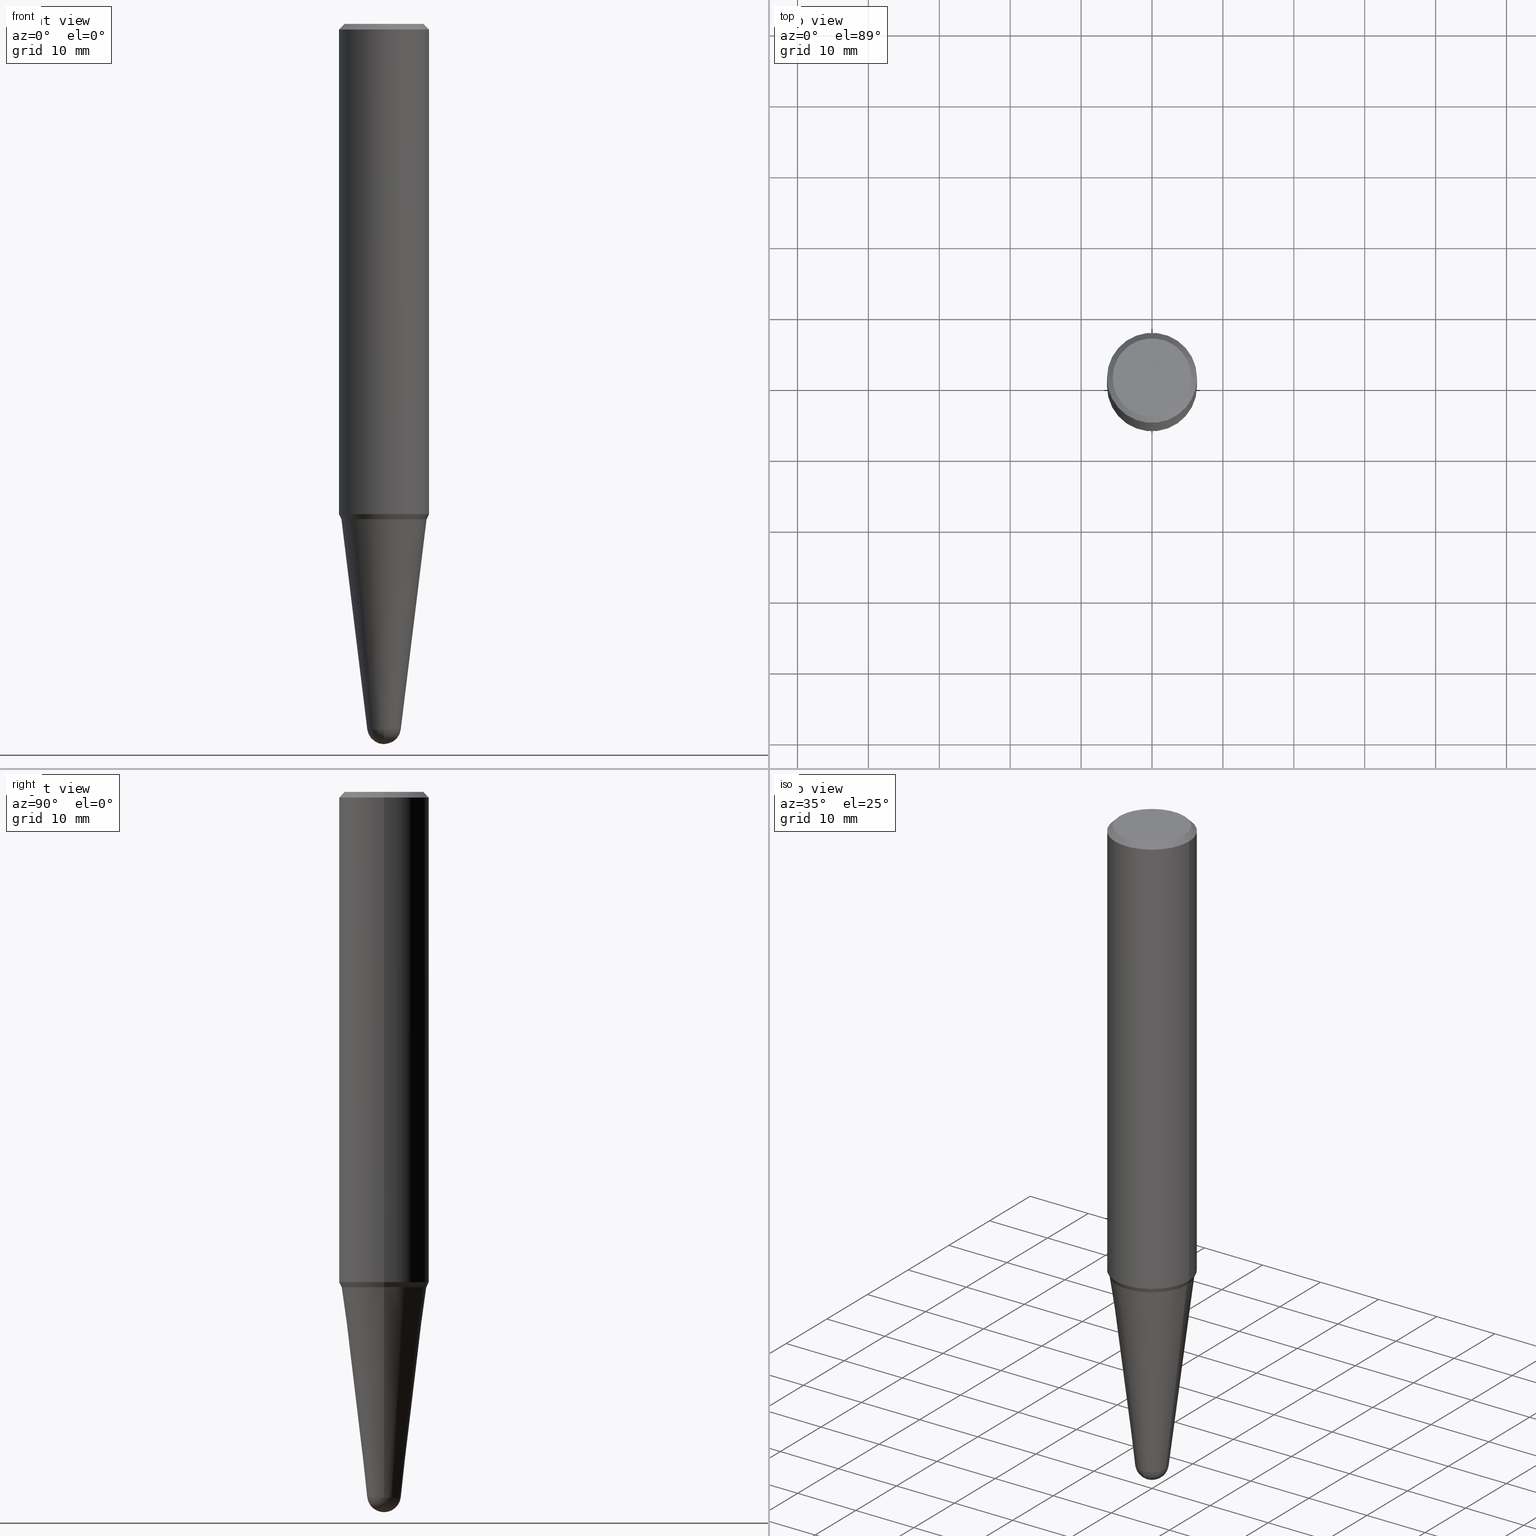
[diagram: canonical four-view strip — front | top / right | iso, engineering-drawing reading convention]
A machine part, canonical four-view strip (front | top / right | iso — engineering-drawing reading convention). The complete STEP part file that produces these views, byte-faithful:
ISO-10303-21;
HEADER;
FILE_DESCRIPTION (( 'STEP AP203' ),
    '1' );
FILE_NAME ('32441.STEP',
    '2024-03-04T15:24:07',
    ( '' ),
    ( '' ),
    'SwSTEP 2.0',
    'SolidWorks 2023',
    '' );
FILE_SCHEMA (( 'CONFIG_CONTROL_DESIGN' ));
ENDSEC;

DATA;
#1 = DIRECTION ( 'NONE',  ( 1.000000000000000000, -6.982962677686275388E-15, 0.000000000000000000 ) ) ;
#2 = CIRCLE ( 'NONE', #331, 0.2500000000000003331 ) ;
#3 = DIRECTION ( 'NONE',  ( 2.438088387897960049E-29, -3.491481338843145188E-15, -1.000000000000000000 ) ) ;
#4 = VECTOR ( 'NONE', #48, 39.37007874015748854 ) ;
#5 = ORIENTED_EDGE ( 'NONE', *, *, #449, .F. ) ;
#6 = DIRECTION ( 'NONE',  ( -2.445468806185136597E-29, 3.491481338843145583E-15, 1.000000000000000000 ) ) ;
#7 = PERSON_AND_ORGANIZATION ( #398, #198 ) ;
#8 = DIRECTION ( 'NONE',  ( -2.445468806185136597E-29, 3.491481338843145583E-15, 1.000000000000000000 ) ) ;
#9 = VECTOR ( 'NONE', #112, 39.37007874015748143 ) ;
#10 = CC_DESIGN_APPROVAL ( #326, ( #251 ) ) ;
#11 = CARTESIAN_POINT ( 'NONE',  ( 0.2364679309439789157, -1.125282041807015082E-14, -2.750000000000000000 ) ) ;
#12 = APPROVAL_DATE_TIME ( #42, #314 ) ;
#13 = DIRECTION ( 'NONE',  ( 0.4226182617406930020, 2.132291770427957594E-16, 0.9063077870366528233 ) ) ;
#14 = DIRECTION ( 'NONE',  ( 1.000000000000000000, -6.982962677686266711E-15, 4.880466792705914597E-29 ) ) ;
#15 = EDGE_CURVE ( 'NONE', #290, #20, #51, .T. ) ;
#16 = CC_DESIGN_APPROVAL ( #286, ( #130 ) ) ;
#17 = CARTESIAN_POINT ( 'NONE',  ( 6.501196143360338918E-16, 0.09310082902394276050, -3.917631344411403482 ) ) ;
#18 = ORIENTED_EDGE ( 'NONE', *, *, #375, .F. ) ;
#19 = CARTESIAN_POINT ( 'NONE',  ( 6.723816482606031719E-29, -9.599827941149227567E-15, -2.749499999999999833 ) ) ;
#20 = VERTEX_POINT ( 'NONE', #423 ) ;
#21 = PLANE ( 'NONE',  #173 ) ;
#22 = ADVANCED_FACE ( 'NONE', ( #315 ), #380, .T. ) ;
#23 = AXIS2_PLACEMENT_3D ( 'NONE', #328, #224, #193 ) ;
#24 = CARTESIAN_POINT ( 'NONE',  ( -0.2500000000000001665, 1.776356839400254015E-15, 5.931196827434174486E-16 ) ) ;
#25 = EDGE_LOOP ( 'NONE', ( #61, #275, #217, #210 ) ) ;
#26 = APPLICATION_CONTEXT ( 'configuration controlled 3d designs of mechanical parts and assemblies' ) ;
#27 = DIRECTION ( 'NONE',  ( 1.000000000000000000, -6.982962677686265922E-15, 4.883557194083112340E-29 ) ) ;
#28 = ORIENTED_EDGE ( 'NONE', *, *, #352, .F. ) ;
#29 = ORIENTED_EDGE ( 'NONE', *, *, #335, .T. ) ;
#30 = CC_DESIGN_DATE_AND_TIME_ASSIGNMENT ( #107, #74, ( #251 ) ) ;
#31 = AXIS2_PLACEMENT_3D ( 'NONE', #159, #364, #433 ) ;
#32 = CONICAL_SURFACE ( 'NONE', #427, 0.2369679309439788883, 0.7853981633983361244 ) ;
#33 = AXIS2_PLACEMENT_3D ( 'NONE', #319, #354, #102 ) ;
#34 = DIRECTION ( 'NONE',  ( 1.000000000000000000, -6.982962677686266711E-15, 0.000000000000000000 ) ) ;
#35 =( NAMED_UNIT ( * ) PLANE_ANGLE_UNIT ( ) SI_UNIT ( $, .RADIAN. ) );
#36 = ORIENTED_EDGE ( 'NONE', *, *, #180, .F. ) ;
#37 = COORDINATED_UNIVERSAL_TIME_OFFSET ( 5, 0, .BEHIND. ) ;
#38 = CC_DESIGN_PERSON_AND_ORGANIZATION_ASSIGNMENT ( #353, #66, ( #125 ) ) ;
#39 = COORDINATED_UNIVERSAL_TIME_OFFSET ( 5, 0, .BEHIND. ) ;
#40 = CARTESIAN_POINT ( 'NONE',  ( 7.642090019328565002E-31, -1.091087918388484967E-16, -0.03125000000000005551 ) ) ;
#41 = AXIS2_PLACEMENT_3D ( 'NONE', #202, #241, #207 ) ;
#42 = DATE_AND_TIME ( #187, #63 ) ;
#43 = CARTESIAN_POINT ( 'NONE',  ( 9.580445246891225390E-29, -1.367833673147939771E-14, -3.917631344411403038 ) ) ;
#44 = DATE_AND_TIME ( #432, #334 ) ;
#45 = CARTESIAN_POINT ( 'NONE',  ( 6.723816482606031719E-29, -9.599827941149227567E-15, -2.749499999999999833 ) ) ;
#46 = FACE_OUTER_BOUND ( 'NONE', #240, .T. ) ;
#47 = CIRCLE ( 'NONE', #33, 0.2369679309439788883 ) ;
#48 = DIRECTION ( 'NONE',  ( -0.7071067811865493491, 2.468850131082277177E-15, -0.7071067811865454633 ) ) ;
#49 = CARTESIAN_POINT ( 'NONE',  ( 6.725039217009124520E-29, -9.601573681818649859E-15, -2.750000000000000000 ) ) ;
#50 = CARTESIAN_POINT ( 'NONE',  ( -0.09310082902395643012, -1.046909176500562336E-14, -3.917631344411403038 ) ) ;
#51 = CIRCLE ( 'NONE', #101, 0.2187500000000003331 ) ;
#52 = EDGE_LOOP ( 'NONE', ( #237, #371, #80, #36 ) ) ;
#53 = CIRCLE ( 'NONE', #146, 0.09310082902395643012 ) ;
#54 = PRODUCT_DEFINITION_SHAPE ( 'NONE', 'NONE',  #251 ) ;
#55 = EDGE_LOOP ( 'NONE', ( #312, #306 ) ) ;
#56 = LINE ( 'NONE', #200, #440 ) ;
#57 = ORIENTED_EDGE ( 'NONE', *, *, #352, .T. ) ;
#58 = CARTESIAN_POINT ( 'NONE',  ( 0.2500000000000003331, -1.125173466965008602E-14, -2.722624891181058437 ) ) ;
#59 = ORIENTED_EDGE ( 'NONE', *, *, #459, .F. ) ;
#60 = DIRECTION ( 'NONE',  ( -2.445468806185136597E-29, 3.491481338843145583E-15, 1.000000000000000000 ) ) ;
#61 = ORIENTED_EDGE ( 'NONE', *, *, #416, .T. ) ;
#62 = AXIS2_PLACEMENT_3D ( 'NONE', #395, #376, #264 ) ;
#63 = LOCAL_TIME ( 10, 24, 7.000000000000000000, #221 ) ;
#64 = CARTESIAN_POINT ( 'NONE',  ( -0.2364679309439789157, -7.921367976093998557E-15, -2.750000000000000000 ) ) ;
#65 = ORIENTED_EDGE ( 'NONE', *, *, #394, .F. ) ;
#66 = PERSON_AND_ORGANIZATION_ROLE ( 'design_owner' ) ;
#67 = VERTEX_POINT ( 'NONE', #457 ) ;
#68 = EDGE_CURVE ( 'NONE', #384, #243, #145, .T. ) ;
#69 = APPLICATION_CONTEXT ( 'configuration controlled 3d designs of mechanical parts and assemblies' ) ;
#70 = CONICAL_SURFACE ( 'NONE', #233, 0.2374679309439793884, 0.4363323129985753335 ) ;
#71 = LINE ( 'NONE', #143, #9 ) ;
#72 = EDGE_LOOP ( 'NONE', ( #235, #134, #100, #142 ) ) ;
#73 = EDGE_CURVE ( 'NONE', #162, #242, #2, .T. ) ;
#74 = DATE_TIME_ROLE ( 'creation_date' ) ;
#75 = PLANE ( 'NONE',  #356 ) ;
#76 = APPLICATION_PROTOCOL_DEFINITION ( 'international standard', 'config_control_design', 1994, #69 ) ;
#77 = VERTEX_POINT ( 'NONE', #318 ) ;
#78 = CALENDAR_DATE ( 2024, 4, 3 ) ;
#79 = ADVANCED_FACE ( 'NONE', ( #426 ), #75, .F. ) ;
#80 = ORIENTED_EDGE ( 'NONE', *, *, #195, .T. ) ;
#81 = DIRECTION ( 'NONE',  ( 1.000000000000000000, -6.982962677686265922E-15, 0.000000000000000000 ) ) ;
#82 = AXIS2_PLACEMENT_3D ( 'NONE', #99, #27, #381 ) ;
#83 = DIRECTION ( 'NONE',  ( 1.000000000000000000, -6.982962677686275388E-15, 0.000000000000000000 ) ) ;
#84 = EDGE_CURVE ( 'NONE', #111, #77, #439, .T. ) ;
#85 = FACE_OUTER_BOUND ( 'NONE', #72, .T. ) ;
#86 = DIRECTION ( 'NONE',  ( -2.445468806185136597E-29, 3.491481338843145583E-15, 1.000000000000000000 ) ) ;
#87 = CONICAL_SURFACE ( 'NONE', #343, 0.2369679309439788883, 0.7853981633983361244 ) ;
#88 = CC_DESIGN_PERSON_AND_ORGANIZATION_ASSIGNMENT ( #139, #211, ( #251 ) ) ;
#89 = CARTESIAN_POINT ( 'NONE',  ( 0.2374679309439793884, -1.125805764007841612E-14, -2.749499999999999833 ) ) ;
#90 = CARTESIAN_POINT ( 'NONE',  ( 6.725039217009124520E-29, -9.601573681818649859E-15, -2.750000000000000000 ) ) ;
#91 = DIRECTION ( 'NONE',  ( -2.438088387897960049E-29, 3.491481338843145188E-15, 1.000000000000000000 ) ) ;
#92 = CIRCLE ( 'NONE', #259, 0.2364679309439789157 ) ;
#93 = EDGE_LOOP ( 'NONE', ( #106, #270, #409, #97 ) ) ;
#94 = DIRECTION ( 'NONE',  ( 1.000000000000000000, -6.982962677686267499E-15, 0.000000000000000000 ) ) ;
#95 = VERTEX_POINT ( 'NONE', #185 ) ;
#96 = CARTESIAN_POINT ( 'NONE',  ( -0.09310082902395643012, -1.301681555391724342E-14, -3.917631344411403038 ) ) ;
#97 = ORIENTED_EDGE ( 'NONE', *, *, #401, .F. ) ;
#98 = ADVANCED_FACE ( 'NONE', ( #46 ), #418, .T. ) ;
#99 = CARTESIAN_POINT ( 'NONE',  ( 9.883867187777395471E-29, -1.316387377111949536E-14, -3.906200000000000117 ) ) ;
#100 = ORIENTED_EDGE ( 'NONE', *, *, #335, .F. ) ;
#101 = AXIS2_PLACEMENT_3D ( 'NONE', #288, #283, #149 ) ;
#102 = DIRECTION ( 'NONE',  ( 1.000000000000000000, -6.982962677686265922E-15, 0.000000000000000000 ) ) ;
#103 = ADVANCED_FACE ( 'NONE', ( #402 ), #396, .T. ) ;
#104 = DESIGN_CONTEXT ( 'detailed design', #26, 'design' ) ;
#105 = DIRECTION ( 'NONE',  ( -2.445468806185136597E-29, 3.491481338843145583E-15, 1.000000000000000000 ) ) ;
#106 = ORIENTED_EDGE ( 'NONE', *, *, #238, .T. ) ;
#107 = DATE_AND_TIME ( #390, #266 ) ;
#108 = EDGE_LOOP ( 'NONE', ( #413, #144, #374, #338 ) ) ;
#109 = CIRCLE ( 'NONE', #129, 0.2364679309439789157 ) ;
#110 = MECHANICAL_CONTEXT ( 'NONE', #69, 'mechanical' ) ;
#111 = VERTEX_POINT ( 'NONE', #436 ) ;
#112 = DIRECTION ( 'NONE',  ( -2.445468806185136877E-29, 3.491481338843145188E-15, 1.000000000000000000 ) ) ;
#113 = DIRECTION ( 'NONE',  ( -1.000000000000000000, 6.982962677686265922E-15, -4.876176775795935793E-29 ) ) ;
#114 = DIRECTION ( 'NONE',  ( 1.000000000000000000, -6.982962677686265922E-15, 0.000000000000000000 ) ) ;
#115 = ADVANCED_FACE ( 'NONE', ( #329 ), #330, .T. ) ;
#116 = DIRECTION ( 'NONE',  ( -1.000000000000000000, 6.982962677686266711E-15, -4.883557194083112901E-29 ) ) ;
#117 = VECTOR ( 'NONE', #269, 39.37007874015748143 ) ;
#118 = DIRECTION ( 'NONE',  ( 1.000000000000000000, -6.982962677686275388E-15, 0.000000000000000000 ) ) ;
#119 = DIRECTION ( 'NONE',  ( 6.982962677686266711E-15, 1.000000000000000000, -5.824835807386490575E-15 ) ) ;
#120 = EDGE_CURVE ( 'NONE', #20, #290, #293, .T. ) ;
#121 = PERSON_AND_ORGANIZATION ( #398, #198 ) ;
#122 = FACE_OUTER_BOUND ( 'NONE', #453, .T. ) ;
#123 = VECTOR ( 'NONE', #311, 39.37007874015748854 ) ;
#124 = DIRECTION ( 'NONE',  ( 1.000000000000000000, -6.982962677686265922E-15, 4.876176775795935793E-29 ) ) ;
#125 = PRODUCT ( '32441', '32441', '', ( #110 ) ) ;
#126 = FACE_OUTER_BOUND ( 'NONE', #250, .T. ) ;
#127 = DIRECTION ( 'NONE',  ( -2.445468806185136597E-29, 3.491481338843145583E-15, 1.000000000000000000 ) ) ;
#128 = EDGE_CURVE ( 'NONE', #313, #391, #454, .T. ) ;
#129 = AXIS2_PLACEMENT_3D ( 'NONE', #49, #256, #399 ) ;
#130 = PRODUCT_DEFINITION_FORMATION_WITH_SPECIFIED_SOURCE ( 'ANY', '', #125, .NOT_KNOWN. ) ;
#131 = CARTESIAN_POINT ( 'NONE',  ( 6.725039217009123399E-29, -9.601573681818648281E-15, -2.749999999999999556 ) ) ;
#132 = ORIENTED_EDGE ( 'NONE', *, *, #339, .F. ) ;
#133 = LINE ( 'NONE', #96, #117 ) ;
#134 = ORIENTED_EDGE ( 'NONE', *, *, #375, .T. ) ;
#135 = APPLICATION_PROTOCOL_DEFINITION ( 'international standard', 'config_control_design', 1994, #26 ) ;
#136 = AXIS2_PLACEMENT_3D ( 'NONE', #299, #157, #14 ) ;
#137 = AXIS2_PLACEMENT_3D ( 'NONE', #172, #280, #392 ) ;
#138 = APPROVAL_PERSON_ORGANIZATION ( #7, #314, #148 ) ;
#139 = PERSON_AND_ORGANIZATION ( #398, #198 ) ;
#140 = EDGE_LOOP ( 'NONE', ( #28, #281, #460, #201 ) ) ;
#141 = CARTESIAN_POINT ( 'NONE',  ( 6.723816482606031719E-29, -9.599827941149227567E-15, -2.749499999999999833 ) ) ;
#142 = ORIENTED_EDGE ( 'NONE', *, *, #267, .F. ) ;
#143 = CARTESIAN_POINT ( 'NONE',  ( 0.2500000000000001665, -1.745740669421565692E-15, 5.931196827434418047E-16 ) ) ;
#144 = ORIENTED_EDGE ( 'NONE', *, *, #120, .F. ) ;
#145 = CIRCLE ( 'NONE', #403, 0.2500000000000000000 ) ;
#146 = AXIS2_PLACEMENT_3D ( 'NONE', #461, #147, #1 ) ;
#147 = DIRECTION ( 'NONE',  ( -2.445468806185136597E-29, 3.491481338843145583E-15, 1.000000000000000000 ) ) ;
#148 = APPROVAL_ROLE ( '' ) ;
#149 = DIRECTION ( 'NONE',  ( 1.000000000000000000, -6.982962677686266711E-15, 4.880466792705914597E-29 ) ) ;
#150 = ORIENTED_EDGE ( 'NONE', *, *, #449, .T. ) ;
#151 = ADVANCED_FACE ( 'NONE', ( #297 ), #32, .T. ) ;
#152 = CARTESIAN_POINT ( 'NONE',  ( 9.883867187777395471E-29, -1.316387377111949536E-14, -3.906200000000000117 ) ) ;
#153 = CIRCLE ( 'NONE', #247, 0.09310082902395643012 ) ;
#154 = CARTESIAN_POINT ( 'NONE',  ( 6.725039217009123399E-29, -9.601573681818648281E-15, -2.749999999999999556 ) ) ;
#155 = MANIFOLD_SOLID_BREP ( 'Body-Move/Copy2[1]', #231 ) ;
#156 = ADVANCED_FACE ( 'NONE', ( #85 ), #359, .T. ) ;
#157 = DIRECTION ( 'NONE',  ( -2.445468806185136597E-29, 3.491481338843145583E-15, 1.000000000000000000 ) ) ;
#158 = EDGE_CURVE ( 'NONE', #67, #242, #362, .T. ) ;
#159 = CARTESIAN_POINT ( 'NONE',  ( 7.642090019328565002E-31, -1.091087918388484967E-16, -0.03125000000000005551 ) ) ;
#160 = DIRECTION ( 'NONE',  ( -2.445468806185136597E-29, 3.491481338843145583E-15, 1.000000000000000000 ) ) ;
#161 = DIRECTION ( 'NONE',  ( 1.000000000000000000, -6.982962677686265922E-15, 0.000000000000000000 ) ) ;
#162 = VERTEX_POINT ( 'NONE', #188 ) ;
#163 = ADVANCED_FACE ( 'NONE', ( #122 ), #325, .T. ) ;
#164 = CARTESIAN_POINT ( 'NONE',  ( 0.09310082902395643012, -1.432845634581533822E-14, -3.917631344411403038 ) ) ;
#165 = VERTEX_POINT ( 'NONE', #260 ) ;
#166 = DIRECTION ( 'NONE',  ( 1.000000000000000000, -6.982962677686275388E-15, 0.000000000000000000 ) ) ;
#167 = AXIS2_PLACEMENT_3D ( 'NONE', #191, #292, #119 ) ;
#168 = CARTESIAN_POINT ( 'NONE',  ( -0.2374679309439793884, -7.912516808066971313E-15, -2.749499999999999833 ) ) ;
#169 = ORIENTED_EDGE ( 'NONE', *, *, #15, .T. ) ;
#170 = FACE_OUTER_BOUND ( 'NONE', #52, .T. ) ;
#171 = EDGE_LOOP ( 'NONE', ( #304, #57, #252, #59 ) ) ;
#172 = CARTESIAN_POINT ( 'NONE',  ( 0.000000000000000000, 0.000000000000000000, 0.000000000000000000 ) ) ;
#173 = AXIS2_PLACEMENT_3D ( 'NONE', #378, #91, #124 ) ;
#174 = DATE_AND_TIME ( #385, #456 ) ;
#175 = DIRECTION ( 'NONE',  ( 1.000000000000000000, -6.982962677686269077E-15, 0.000000000000000000 ) ) ;
#176 = VERTEX_POINT ( 'NONE', #405 ) ;
#177 = DIRECTION ( 'NONE',  ( 1.000000000000000000, -6.982962677686265922E-15, 0.000000000000000000 ) ) ;
#178 = CC_DESIGN_PERSON_AND_ORGANIZATION_ASSIGNMENT ( #121, #184, ( #130 ) ) ;
#179 = ORIENTED_EDGE ( 'NONE', *, *, #346, .T. ) ;
#180 = EDGE_CURVE ( 'NONE', #20, #384, #229, .T. ) ;
#181 = EDGE_LOOP ( 'NONE', ( #65, #344, #407, #5 ) ) ;
#182 = AXIS2_PLACEMENT_3D ( 'NONE', #349, #278, #462 ) ;
#183 = VECTOR ( 'NONE', #305, 39.37007874015748143 ) ;
#184 = PERSON_AND_ORGANIZATION_ROLE ( 'creator' ) ;
#185 = CARTESIAN_POINT ( 'NONE',  ( 0.09310082902395643012, -1.279063838194274531E-14, -3.917631344411403038 ) ) ;
#186 = EDGE_CURVE ( 'NONE', #377, #213, #109, .T. ) ;
#187 = CALENDAR_DATE ( 2024, 4, 3 ) ;
#188 = CARTESIAN_POINT ( 'NONE',  ( -0.2500000000000003331, -7.729637160828264142E-15, -2.722624891181058437 ) ) ;
#189 = ADVANCED_FACE ( 'NONE', ( #437 ), #316, .T. ) ;
#190 = AXIS2_PLACEMENT_3D ( 'NONE', #204, #414, #272 ) ;
#191 = CARTESIAN_POINT ( 'NONE',  ( 9.883867187777395471E-29, -1.316387377111949536E-14, -3.906200000000000117 ) ) ;
#192 = DATE_AND_TIME ( #78, #446 ) ;
#193 = DIRECTION ( 'NONE',  ( 1.000000000000000000, -6.982962677686266711E-15, 0.000000000000000000 ) ) ;
#194 = FACE_OUTER_BOUND ( 'NONE', #383, .T. ) ;
#195 = EDGE_CURVE ( 'NONE', #243, #384, #227, .T. ) ;
#196 = LINE ( 'NONE', #408, #214 ) ;
#197 = AXIS2_PLACEMENT_3D ( 'NONE', #258, #86, #228 ) ;
#198 = ORGANIZATION ( 'UNSPECIFIED', 'UNSPECIFIED', '' ) ;
#199 = ADVANCED_FACE ( 'NONE', ( #194 ), #70, .T. ) ;
#200 = CARTESIAN_POINT ( 'NONE',  ( 0.2369679309439788883, -1.125631189940898910E-14, -2.749999999999999556 ) ) ;
#201 = ORIENTED_EDGE ( 'NONE', *, *, #68, .F. ) ;
#202 = CARTESIAN_POINT ( 'NONE',  ( 7.642090019328565002E-31, -1.091087918388484967E-16, -0.03125000000000005551 ) ) ;
#203 = ORIENTED_EDGE ( 'NONE', *, *, #284, .T. ) ;
#204 = CARTESIAN_POINT ( 'NONE',  ( -1.450455682483482035E-44, 2.070866303999251778E-30, 5.931196827434296760E-16 ) ) ;
#205 = VECTOR ( 'NONE', #13, 39.37007874015748854 ) ;
#206 = ORIENTED_EDGE ( 'NONE', *, *, #367, .F. ) ;
#207 = DIRECTION ( 'NONE',  ( -1.000000000000000000, 6.982962677686266711E-15, 0.000000000000000000 ) ) ;
#208 = ORIENTED_EDGE ( 'NONE', *, *, #339, .T. ) ;
#209 = DIRECTION ( 'NONE',  ( 1.000000000000000000, -6.982962677686269077E-15, 0.000000000000000000 ) ) ;
#210 = ORIENTED_EDGE ( 'NONE', *, *, #158, .F. ) ;
#211 = PERSON_AND_ORGANIZATION_ROLE ( 'creator' ) ;
#212 = AXIS2_PLACEMENT_3D ( 'NONE', #393, #219, #350 ) ;
#213 = VERTEX_POINT ( 'NONE', #11 ) ;
#214 = VECTOR ( 'NONE', #443, 39.37007874015748143 ) ;
#215 = EDGE_CURVE ( 'NONE', #290, #243, #298, .T. ) ;
#216 = PERSON_AND_ORGANIZATION ( #398, #198 ) ;
#217 = ORIENTED_EDGE ( 'NONE', *, *, #448, .F. ) ;
#218 = CC_DESIGN_PERSON_AND_ORGANIZATION_ASSIGNMENT ( #225, #358, ( #295 ) ) ;
#219 = DIRECTION ( 'NONE',  ( -1.000000000000000000, 7.105427357601001070E-15, -4.926315508542082329E-29 ) ) ;
#220 =( GEOMETRIC_REPRESENTATION_CONTEXT ( 3 ) GLOBAL_UNCERTAINTY_ASSIGNED_CONTEXT ( ( #309 ) ) GLOBAL_UNIT_ASSIGNED_CONTEXT ( ( #348, #35, #248 ) ) REPRESENTATION_CONTEXT ( 'NONE', 'WORKASPACE' ) );
#221 = COORDINATED_UNIVERSAL_TIME_OFFSET ( 5, 0, .BEHIND. ) ;
#222 = DIRECTION ( 'NONE',  ( 0.7071067811865493491, -7.319954787623260779E-15, -0.7071067811865454633 ) ) ;
#223 = PERSON_AND_ORGANIZATION ( #398, #198 ) ;
#224 = DIRECTION ( 'NONE',  ( -2.445468806185136597E-29, 3.491481338843145583E-15, 1.000000000000000000 ) ) ;
#225 = PERSON_AND_ORGANIZATION ( #398, #198 ) ;
#226 = DIRECTION ( 'NONE',  ( 6.982962677686266711E-15, 1.000000000000000000, -5.824835807386490575E-15 ) ) ;
#227 = CIRCLE ( 'NONE', #23, 0.2500000000000000000 ) ;
#228 = DIRECTION ( 'NONE',  ( 1.000000000000000000, -6.982962677686266711E-15, 4.852736867747362844E-29 ) ) ;
#229 = LINE ( 'NONE', #369, #4 ) ;
#230 = DIRECTION ( 'NONE',  ( -1.000000000000000000, 6.982962677686265922E-15, -4.876176775795935793E-29 ) ) ;
#231 = CLOSED_SHELL ( 'NONE', ( #189, #163, #156, #98, #382 ) ) ;
#232 = DIRECTION ( 'NONE',  ( 1.000000000000000000, -6.982962677686275388E-15, 0.000000000000000000 ) ) ;
#233 = AXIS2_PLACEMENT_3D ( 'NONE', #45, #302, #114 ) ;
#234 = VECTOR ( 'NONE', #303, 39.37007874015748143 ) ;
#235 = ORIENTED_EDGE ( 'NONE', *, *, #84, .F. ) ;
#236 = LINE ( 'NONE', #168, #123 ) ;
#237 = ORIENTED_EDGE ( 'NONE', *, *, #15, .F. ) ;
#238 = EDGE_CURVE ( 'NONE', #176, #431, #287, .T. ) ;
#239 = FACE_OUTER_BOUND ( 'NONE', #55, .T. ) ;
#240 = EDGE_LOOP ( 'NONE', ( #271, #388, #347, #208, #386 ) ) ;
#241 = DIRECTION ( 'NONE',  ( 2.445468806185136597E-29, -3.491481338843145583E-15, -1.000000000000000000 ) ) ;
#242 = VERTEX_POINT ( 'NONE', #58 ) ;
#243 = VERTEX_POINT ( 'NONE', #412 ) ;
#244 = ORIENTED_EDGE ( 'NONE', *, *, #158, .T. ) ;
#245 = CARTESIAN_POINT ( 'NONE',  ( 6.658094242326480624E-29, -9.505994000228516185E-15, -2.722624891181058437 ) ) ;
#246 = ORIENTED_EDGE ( 'NONE', *, *, #346, .F. ) ;
#247 = AXIS2_PLACEMENT_3D ( 'NONE', #373, #417, #232 ) ;
#248 =( NAMED_UNIT ( * ) SI_UNIT ( $, .STERADIAN. ) SOLID_ANGLE_UNIT ( ) );
#249 = ORIENTED_EDGE ( 'NONE', *, *, #128, .T. ) ;
#250 = EDGE_LOOP ( 'NONE', ( #179, #336 ) ) ;
#251 = PRODUCT_DEFINITION ( 'UNKNOWN', '', #130, #104 ) ;
#252 = ORIENTED_EDGE ( 'NONE', *, *, #195, .F. ) ;
#253 = ORIENTED_EDGE ( 'NONE', *, *, #424, .F. ) ;
#254 = CARTESIAN_POINT ( 'NONE',  ( 0.2500000000000000000, -1.824233291281731597E-15, -0.03125000000000005551 ) ) ;
#255 = APPROVAL_PERSON_ORGANIZATION ( #420, #326, #455 ) ;
#256 = DIRECTION ( 'NONE',  ( -2.445468806185136597E-29, 3.491481338843145583E-15, 1.000000000000000000 ) ) ;
#257 = DATE_TIME_ROLE ( 'classification_date' ) ;
#258 = CARTESIAN_POINT ( 'NONE',  ( -1.450455682483482035E-44, 2.070866303999251778E-30, 5.931196827434296760E-16 ) ) ;
#259 = AXIS2_PLACEMENT_3D ( 'NONE', #342, #406, #94 ) ;
#260 = CARTESIAN_POINT ( 'NONE',  ( -0.2374679309439793884, -7.912516808066971313E-15, -2.749499999999999833 ) ) ;
#261 = PRODUCT_RELATED_PRODUCT_CATEGORY ( 'detail', '', ( #125 ) ) ;
#262 = CARTESIAN_POINT ( 'NONE',  ( 9.580445246891225390E-29, -1.367833673147939771E-14, -3.917631344411403038 ) ) ;
#263 = DIRECTION ( 'NONE',  ( 2.438088387897960049E-29, -3.491481338843145188E-15, -1.000000000000000000 ) ) ;
#264 = DIRECTION ( 'NONE',  ( 1.000000000000000000, -6.982962677686265922E-15, 0.000000000000000000 ) ) ;
#265 = AXIS2_PLACEMENT_3D ( 'NONE', #425, #105, #209 ) ;
#266 = LOCAL_TIME ( 10, 24, 7.000000000000000000, #282 ) ;
#267 = EDGE_CURVE ( 'NONE', #77, #95, #435, .T. ) ;
#268 = ORIENTED_EDGE ( 'NONE', *, *, #84, .T. ) ;
#269 = DIRECTION ( 'NONE',  ( -0.1218693434051476565, 4.331390133080061984E-15, 0.9925461516413219831 ) ) ;
#270 = ORIENTED_EDGE ( 'NONE', *, *, #394, .T. ) ;
#271 = ORIENTED_EDGE ( 'NONE', *, *, #284, .F. ) ;
#272 = DIRECTION ( 'NONE',  ( 1.000000000000000000, -6.982962677686266711E-15, 4.852736867747362844E-29 ) ) ;
#273 = ADVANCED_FACE ( 'NONE', ( #170 ), #324, .T. ) ;
#274 = DIRECTION ( 'NONE',  ( -2.445468806185136597E-29, 3.491481338843145583E-15, 1.000000000000000000 ) ) ;
#275 = ORIENTED_EDGE ( 'NONE', *, *, #367, .T. ) ;
#276 = APPROVAL_PERSON_ORGANIZATION ( #216, #286, #355 ) ;
#277 = CARTESIAN_POINT ( 'NONE',  ( -0.2369679309439788883, -7.915166035241083302E-15, -2.749999999999999556 ) ) ;
#278 = DIRECTION ( 'NONE',  ( -2.445468806185136597E-29, 3.491481338843145583E-15, 1.000000000000000000 ) ) ;
#279 = DIMENSIONAL_EXPONENTS ( 1.000000000000000000, 0.000000000000000000, 0.000000000000000000, 0.000000000000000000, 0.000000000000000000, 0.000000000000000000, 0.000000000000000000 ) ;
#280 = DIRECTION ( 'NONE',  ( 0.000000000000000000, 0.000000000000000000, 1.000000000000000000 ) ) ;
#281 = ORIENTED_EDGE ( 'NONE', *, *, #73, .T. ) ;
#282 = COORDINATED_UNIVERSAL_TIME_OFFSET ( 5, 0, .BEHIND. ) ;
#283 = DIRECTION ( 'NONE',  ( -2.445468806185136597E-29, 3.491481338843145583E-15, 1.000000000000000000 ) ) ;
#284 = EDGE_CURVE ( 'NONE', #391, #377, #133, .T. ) ;
#285 = CLOSED_SHELL ( 'NONE', ( #273, #115, #22, #151, #300, #320, #199, #291, #103, #79 ) ) ;
#286 = APPROVAL ( #322, 'UNSPECIFIED' ) ;
#287 = CIRCLE ( 'NONE', #62, 0.2369679309439788883 ) ;
#288 = CARTESIAN_POINT ( 'NONE',  ( 1.366947569336664402E-44, -1.951638850368815849E-30, -5.589715828226263611E-16 ) ) ;
#289 = COORDINATED_UNIVERSAL_TIME_OFFSET ( 5, 0, .BEHIND. ) ;
#290 = VERTEX_POINT ( 'NONE', #340 ) ;
#291 = ADVANCED_FACE ( 'NONE', ( #450 ), #307, .T. ) ;
#292 = DIRECTION ( 'NONE',  ( -1.000000000000000000, 6.982962677686266711E-15, -4.883557194083112901E-29 ) ) ;
#293 = CIRCLE ( 'NONE', #136, 0.2187500000000003331 ) ;
#294 = CIRCLE ( 'NONE', #351, 0.2374679309439793884 ) ;
#295 = SECURITY_CLASSIFICATION ( '', '', #366 ) ;
#296 = CC_DESIGN_PERSON_AND_ORGANIZATION_ASSIGNMENT ( #223, #361, ( #130 ) ) ;
#297 = FACE_OUTER_BOUND ( 'NONE', #93, .T. ) ;
#298 = LINE ( 'NONE', #254, #308 ) ;
#299 = CARTESIAN_POINT ( 'NONE',  ( 1.366947569336664402E-44, -1.951638850368815849E-30, -5.589715828226263611E-16 ) ) ;
#300 = ADVANCED_FACE ( 'NONE', ( #239 ), #21, .F. ) ;
#301 = CIRCLE ( 'NONE', #82, 0.09379999999999996674 ) ;
#302 = DIRECTION ( 'NONE',  ( -2.445468806185136597E-29, 3.491481338843145583E-15, 1.000000000000000000 ) ) ;
#303 = DIRECTION ( 'NONE',  ( -2.445468806185136877E-29, 3.491481338843145188E-15, 1.000000000000000000 ) ) ;
#304 = ORIENTED_EDGE ( 'NONE', *, *, #448, .T. ) ;
#305 = DIRECTION ( 'NONE',  ( 0.1218693434051476565, 2.614447289843977717E-15, 0.9925461516413219831 ) ) ;
#306 = ORIENTED_EDGE ( 'NONE', *, *, #419, .F. ) ;
#307 = CYLINDRICAL_SURFACE ( 'NONE', #190, 0.2500000000000001665 ) ;
#308 = VECTOR ( 'NONE', #222, 39.37007874015748854 ) ;
#309 = UNCERTAINTY_MEASURE_WITH_UNIT (LENGTH_MEASURE( 1.000000000000000082E-05 ), #348, 'distance_accuracy_value', 'NONE');
#310 = CC_DESIGN_APPROVAL ( #314, ( #295 ) ) ;
#311 = DIRECTION ( 'NONE',  ( -0.4226182617406930020, 6.167240084480801324E-15, 0.9063077870366528233 ) ) ;
#312 = ORIENTED_EDGE ( 'NONE', *, *, #238, .F. ) ;
#313 = VERTEX_POINT ( 'NONE', #17 ) ;
#314 = APPROVAL ( #363, 'UNSPECIFIED' ) ;
#315 = FACE_OUTER_BOUND ( 'NONE', #25, .T. ) ;
#316 = CONICAL_SURFACE ( 'NONE', #389, 0.09310082902395643012, 0.1221730476396032522 ) ;
#317 = APPROVAL_DATE_TIME ( #174, #326 ) ;
#318 = CARTESIAN_POINT ( 'NONE',  ( -6.615211775620541004E-16, -0.09310082902396964177, -3.917631344411402150 ) ) ;
#319 = CARTESIAN_POINT ( 'NONE',  ( 6.725039217009123399E-29, -9.601573681818648281E-15, -2.749999999999999556 ) ) ;
#320 = ADVANCED_FACE ( 'NONE', ( #447 ), #87, .T. ) ;
#321 = ORIENTED_EDGE ( 'NONE', *, *, #120, .T. ) ;
#322 = APPROVAL_STATUS ( 'not_yet_approved' ) ;
#323 = CARTESIAN_POINT ( 'NONE',  ( 6.834737846683322012E-45, -9.758194251844079245E-31, -2.794857914113131805E-16 ) ) ;
#324 = CONICAL_SURFACE ( 'NONE', #41, 0.2500000000000000000, 0.7853981633974510546 ) ;
#325 = SPHERICAL_SURFACE ( 'NONE', #372, 0.09379999999999996674 ) ;
#326 = APPROVAL ( #422, 'UNSPECIFIED' ) ;
#327 = DIRECTION ( 'NONE',  ( 1.000000000000000000, -6.982962677686275388E-15, 0.000000000000000000 ) ) ;
#328 = CARTESIAN_POINT ( 'NONE',  ( 7.642090019328565002E-31, -1.091087918388484967E-16, -0.03125000000000005551 ) ) ;
#329 = FACE_OUTER_BOUND ( 'NONE', #171, .T. ) ;
#330 = CYLINDRICAL_SURFACE ( 'NONE', #197, 0.2500000000000001665 ) ;
#331 = AXIS2_PLACEMENT_3D ( 'NONE', #245, #429, #175 ) ;
#332 = AXIS2_PLACEMENT_3D ( 'NONE', #90, #263, #230 ) ;
#333 = LINE ( 'NONE', #164, #183 ) ;
#334 = LOCAL_TIME ( 10, 24, 7.000000000000000000, #289 ) ;
#335 = EDGE_CURVE ( 'NONE', #95, #313, #153, .T. ) ;
#336 = ORIENTED_EDGE ( 'NONE', *, *, #186, .T. ) ;
#337 = DIRECTION ( 'NONE',  ( 0.7071067811871752928, -2.468850131088832216E-15, 0.7071067811859197416 ) ) ;
#338 = ORIENTED_EDGE ( 'NONE', *, *, #68, .T. ) ;
#339 = EDGE_CURVE ( 'NONE', #95, #213, #333, .T. ) ;
#340 = CARTESIAN_POINT ( 'NONE',  ( 0.2187500000000003331, -1.662483614147129232E-15, -5.589715828226152184E-16 ) ) ;
#341 = ORIENTED_EDGE ( 'NONE', *, *, #73, .F. ) ;
#342 = CARTESIAN_POINT ( 'NONE',  ( 6.725039217009124520E-29, -9.601573681818649859E-15, -2.750000000000000000 ) ) ;
#343 = AXIS2_PLACEMENT_3D ( 'NONE', #131, #60, #161 ) ;
#344 = ORIENTED_EDGE ( 'NONE', *, *, #419, .T. ) ;
#345 = PLANE ( 'NONE',  #332 ) ;
#346 = EDGE_CURVE ( 'NONE', #213, #377, #92, .T. ) ;
#347 = ORIENTED_EDGE ( 'NONE', *, *, #267, .T. ) ;
#348 =( CONVERSION_BASED_UNIT ( 'INCH', #428 ) LENGTH_UNIT ( ) NAMED_UNIT ( #279 ) );
#349 = CARTESIAN_POINT ( 'NONE',  ( 6.723816482606031719E-29, -9.599827941149227567E-15, -2.749499999999999833 ) ) ;
#350 = DIRECTION ( 'NONE',  ( -7.105427357601001070E-15, -1.000000000000000000, 0.000000000000000000 ) ) ;
#351 = AXIS2_PLACEMENT_3D ( 'NONE', #141, #274, #177 ) ;
#352 = EDGE_CURVE ( 'NONE', #162, #384, #442, .T. ) ;
#353 = PERSON_AND_ORGANIZATION ( #398, #198 ) ;
#354 = DIRECTION ( 'NONE',  ( -2.445468806185136597E-29, 3.491481338843145583E-15, 1.000000000000000000 ) ) ;
#355 = APPROVAL_ROLE ( '' ) ;
#356 = AXIS2_PLACEMENT_3D ( 'NONE', #323, #3, #113 ) ;
#357 = AXIS2_PLACEMENT_3D ( 'NONE', #19, #127, #387 ) ;
#358 = PERSON_AND_ORGANIZATION_ROLE ( 'classification_officer' ) ;
#359 = SPHERICAL_SURFACE ( 'NONE', #167, 0.09379999999999996674 ) ;
#360 = CC_DESIGN_DATE_AND_TIME_ASSIGNMENT ( #44, #257, ( #295 ) ) ;
#361 = PERSON_AND_ORGANIZATION_ROLE ( 'design_supplier' ) ;
#362 = LINE ( 'NONE', #89, #205 ) ;
#363 = APPROVAL_STATUS ( 'not_yet_approved' ) ;
#364 = DIRECTION ( 'NONE',  ( 2.445468806185136597E-29, -3.491481338843145583E-15, -1.000000000000000000 ) ) ;
#365 = CC_DESIGN_SECURITY_CLASSIFICATION ( #295, ( #130 ) ) ;
#366 = SECURITY_CLASSIFICATION_LEVEL ( 'unclassified' ) ;
#367 = EDGE_CURVE ( 'NONE', #165, #162, #236, .T. ) ;
#368 = CARTESIAN_POINT ( 'NONE',  ( 9.580445246891225390E-29, -1.367833673147939771E-14, -3.917631344411403038 ) ) ;
#369 = CARTESIAN_POINT ( 'NONE',  ( -0.2500000000000000000, 1.636631877582718169E-15, -0.03125000000000005551 ) ) ;
#370 = CARTESIAN_POINT ( 'NONE',  ( -0.2500000000000000000, -3.031194556633429811E-15, -0.03125000000000005551 ) ) ;
#371 = ORIENTED_EDGE ( 'NONE', *, *, #215, .T. ) ;
#372 = AXIS2_PLACEMENT_3D ( 'NONE', #152, #116, #226 ) ;
#373 = CARTESIAN_POINT ( 'NONE',  ( 9.580445246891225390E-29, -1.367833673147939771E-14, -3.917631344411403038 ) ) ;
#374 = ORIENTED_EDGE ( 'NONE', *, *, #180, .T. ) ;
#375 = EDGE_CURVE ( 'NONE', #111, #313, #301, .T. ) ;
#376 = DIRECTION ( 'NONE',  ( -2.445468806185136597E-29, 3.491481338843145583E-15, 1.000000000000000000 ) ) ;
#377 = VERTEX_POINT ( 'NONE', #64 ) ;
#378 = CARTESIAN_POINT ( 'NONE',  ( 1.115264926436135617E-28, -3.260984090096420932E-15, -2.750000000000000000 ) ) ;
#379 = ORIENTED_EDGE ( 'NONE', *, *, #128, .F. ) ;
#380 = CONICAL_SURFACE ( 'NONE', #182, 0.2374679309439793884, 0.4363323129985753335 ) ;
#381 = DIRECTION ( 'NONE',  ( 6.982962677686266711E-15, 1.000000000000000000, 0.000000000000000000 ) ) ;
#382 = ADVANCED_FACE ( 'NONE', ( #126 ), #345, .F. ) ;
#383 = EDGE_LOOP ( 'NONE', ( #206, #150, #244, #341 ) ) ;
#384 = VERTEX_POINT ( 'NONE', #370 ) ;
#385 = CALENDAR_DATE ( 2024, 4, 3 ) ;
#386 = ORIENTED_EDGE ( 'NONE', *, *, #186, .F. ) ;
#387 = DIRECTION ( 'NONE',  ( 1.000000000000000000, -6.982962677686265922E-15, 0.000000000000000000 ) ) ;
#388 = ORIENTED_EDGE ( 'NONE', *, *, #424, .T. ) ;
#389 = AXIS2_PLACEMENT_3D ( 'NONE', #43, #160, #118 ) ;
#390 = CALENDAR_DATE ( 2024, 4, 3 ) ;
#391 = VERTEX_POINT ( 'NONE', #50 ) ;
#392 = DIRECTION ( 'NONE',  ( 1.000000000000000000, 0.000000000000000000, 0.000000000000000000 ) ) ;
#393 = CARTESIAN_POINT ( 'NONE',  ( 9.883867187777395471E-29, -1.316387377111949536E-14, -3.906200000000000117 ) ) ;
#394 = EDGE_CURVE ( 'NONE', #431, #165, #196, .T. ) ;
#395 = CARTESIAN_POINT ( 'NONE',  ( 6.725039217009123399E-29, -9.601573681818648281E-15, -2.749999999999999556 ) ) ;
#396 = CONICAL_SURFACE ( 'NONE', #31, 0.2500000000000000000, 0.7853981633974510546 ) ;
#397 = APPROVAL_DATE_TIME ( #192, #286 ) ;
#398 = PERSON ( 'UNSPECIFIED', 'UNSPECIFIED', 'UNSPECIFIED', ('UNSPECIFIED'), ('UNSPECIFIED'), ('UNSPECIFIED') ) ;
#399 = DIRECTION ( 'NONE',  ( 1.000000000000000000, -6.982962677686267499E-15, 0.000000000000000000 ) ) ;
#400 = DIRECTION ( 'NONE',  ( -2.445468806185136597E-29, 3.491481338843145583E-15, 1.000000000000000000 ) ) ;
#401 = EDGE_CURVE ( 'NONE', #176, #67, #56, .T. ) ;
#402 = FACE_OUTER_BOUND ( 'NONE', #108, .T. ) ;
#403 = AXIS2_PLACEMENT_3D ( 'NONE', #40, #421, #34 ) ;
#404 = CIRCLE ( 'NONE', #265, 0.2500000000000003331 ) ;
#405 = CARTESIAN_POINT ( 'NONE',  ( 0.2369679309439788883, -1.125631189940898910E-14, -2.749999999999999556 ) ) ;
#406 = DIRECTION ( 'NONE',  ( -2.445468806185136597E-29, 3.491481338843145583E-15, 1.000000000000000000 ) ) ;
#407 = ORIENTED_EDGE ( 'NONE', *, *, #401, .T. ) ;
#408 = CARTESIAN_POINT ( 'NONE',  ( -0.2369679309439788883, -7.917815262415195292E-15, -2.749999999999999556 ) ) ;
#409 = ORIENTED_EDGE ( 'NONE', *, *, #416, .F. ) ;
#410 = AXIS2_PLACEMENT_3D ( 'NONE', #368, #6, #327 ) ;
#411 = CIRCLE ( 'NONE', #357, 0.2374679309439793884 ) ;
#412 = CARTESIAN_POINT ( 'NONE',  ( 0.2500000000000000000, -1.854849461260415384E-15, -0.03125000000000005551 ) ) ;
#413 = ORIENTED_EDGE ( 'NONE', *, *, #215, .F. ) ;
#414 = DIRECTION ( 'NONE',  ( -2.445468806185136597E-29, 3.491481338843145583E-15, 1.000000000000000000 ) ) ;
#415 = EDGE_LOOP ( 'NONE', ( #321, #169 ) ) ;
#416 = EDGE_CURVE ( 'NONE', #67, #165, #411, .T. ) ;
#417 = DIRECTION ( 'NONE',  ( -2.445468806185136597E-29, 3.491481338843145583E-15, 1.000000000000000000 ) ) ;
#418 = CONICAL_SURFACE ( 'NONE', #434, 0.09310082902395643012, 0.1221730476396032522 ) ;
#419 = EDGE_CURVE ( 'NONE', #431, #176, #47, .T. ) ;
#420 = PERSON_AND_ORGANIZATION ( #398, #198 ) ;
#421 = DIRECTION ( 'NONE',  ( -2.445468806185136597E-29, 3.491481338843145583E-15, 1.000000000000000000 ) ) ;
#422 = APPROVAL_STATUS ( 'not_yet_approved' ) ;
#423 = CARTESIAN_POINT ( 'NONE',  ( -0.2187500000000003331, 1.582077481663294604E-15, -5.589715828226373065E-16 ) ) ;
#424 = EDGE_CURVE ( 'NONE', #391, #77, #53, .T. ) ;
#425 = CARTESIAN_POINT ( 'NONE',  ( 6.658094242326480624E-29, -9.505994000228516185E-15, -2.722624891181058437 ) ) ;
#426 = FACE_OUTER_BOUND ( 'NONE', #415, .T. ) ;
#427 = AXIS2_PLACEMENT_3D ( 'NONE', #154, #400, #81 ) ;
#428 = LENGTH_MEASURE_WITH_UNIT ( LENGTH_MEASURE( 0.02539999999999999897 ), #452 );
#429 = DIRECTION ( 'NONE',  ( -2.445468806185136597E-29, 3.491481338843145583E-15, 1.000000000000000000 ) ) ;
#430 = SHAPE_DEFINITION_REPRESENTATION ( #54, #444 ) ;
#431 = VERTEX_POINT ( 'NONE', #277 ) ;
#432 = CALENDAR_DATE ( 2024, 4, 3 ) ;
#433 = DIRECTION ( 'NONE',  ( -1.000000000000000000, 6.982962677686266711E-15, 0.000000000000000000 ) ) ;
#434 = AXIS2_PLACEMENT_3D ( 'NONE', #438, #8, #83 ) ;
#435 = CIRCLE ( 'NONE', #445, 0.09310082902395643012 ) ;
#436 = CARTESIAN_POINT ( 'NONE',  ( 1.011726289169381084E-28, -1.348563112721498059E-14, -4.000000000000000000 ) ) ;
#437 = FACE_OUTER_BOUND ( 'NONE', #451, .T. ) ;
#438 = CARTESIAN_POINT ( 'NONE',  ( 9.580445246891225390E-29, -1.367833673147939771E-14, -3.917631344411403038 ) ) ;
#439 = CIRCLE ( 'NONE', #212, 0.09379999999999996674 ) ;
#440 = VECTOR ( 'NONE', #337, 39.37007874015748143 ) ;
#441 = DIRECTION ( 'NONE',  ( -2.445468806185136597E-29, 3.491481338843145583E-15, 1.000000000000000000 ) ) ;
#442 = LINE ( 'NONE', #24, #234 ) ;
#443 = DIRECTION ( 'NONE',  ( -0.7071067811871752928, 7.493145998872622924E-15, 0.7071067811859197416 ) ) ;
#444 = ADVANCED_BREP_SHAPE_REPRESENTATION ( '32441', ( #155, #458, #137 ), #220 ) ;
#445 = AXIS2_PLACEMENT_3D ( 'NONE', #262, #441, #166 ) ;
#446 = LOCAL_TIME ( 10, 24, 7.000000000000000000, #39 ) ;
#447 = FACE_OUTER_BOUND ( 'NONE', #181, .T. ) ;
#448 = EDGE_CURVE ( 'NONE', #242, #162, #404, .T. ) ;
#449 = EDGE_CURVE ( 'NONE', #165, #67, #294, .T. ) ;
#450 = FACE_OUTER_BOUND ( 'NONE', #140, .T. ) ;
#451 = EDGE_LOOP ( 'NONE', ( #249, #203, #246, #132, #29 ) ) ;
#452 =( LENGTH_UNIT ( ) NAMED_UNIT ( * ) SI_UNIT ( $, .METRE. ) );
#453 = EDGE_LOOP ( 'NONE', ( #18, #268, #253, #379 ) ) ;
#454 = CIRCLE ( 'NONE', #410, 0.09310082902395643012 ) ;
#455 = APPROVAL_ROLE ( '' ) ;
#456 = LOCAL_TIME ( 10, 24, 7.000000000000000000, #37 ) ;
#457 = CARTESIAN_POINT ( 'NONE',  ( 0.2374679309439793884, -1.125805764007841612E-14, -2.749499999999999833 ) ) ;
#458 = MANIFOLD_SOLID_BREP ( 'Body-Move/Copy2[2]', #285 ) ;
#459 = EDGE_CURVE ( 'NONE', #242, #243, #71, .T. ) ;
#460 = ORIENTED_EDGE ( 'NONE', *, *, #459, .T. ) ;
#461 = CARTESIAN_POINT ( 'NONE',  ( 9.580445246891225390E-29, -1.367833673147939771E-14, -3.917631344411403038 ) ) ;
#462 = DIRECTION ( 'NONE',  ( 1.000000000000000000, -6.982962677686265922E-15, 0.000000000000000000 ) ) ;
ENDSEC;
END-ISO-10303-21;
